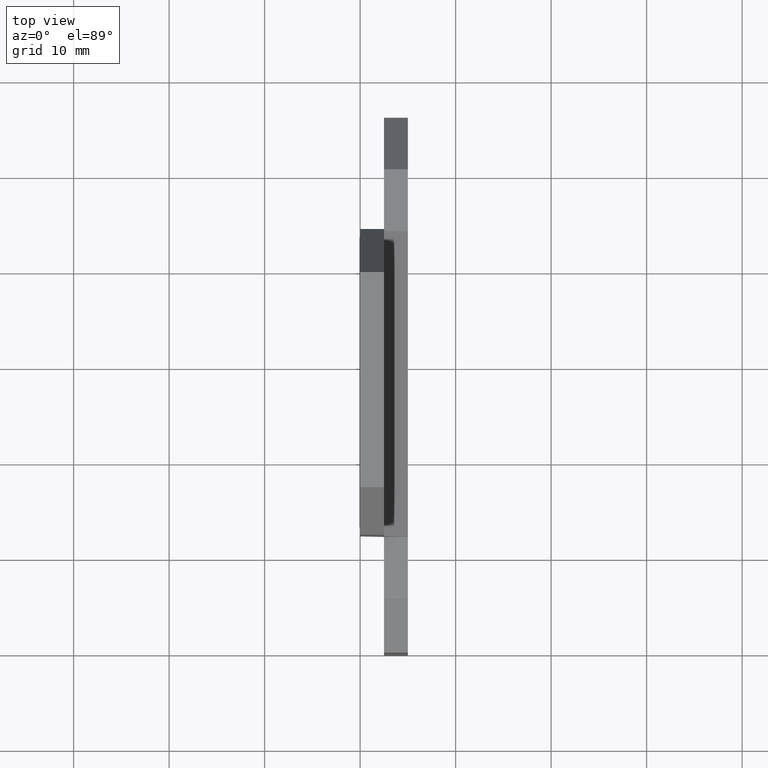
[diagram: clean part render]
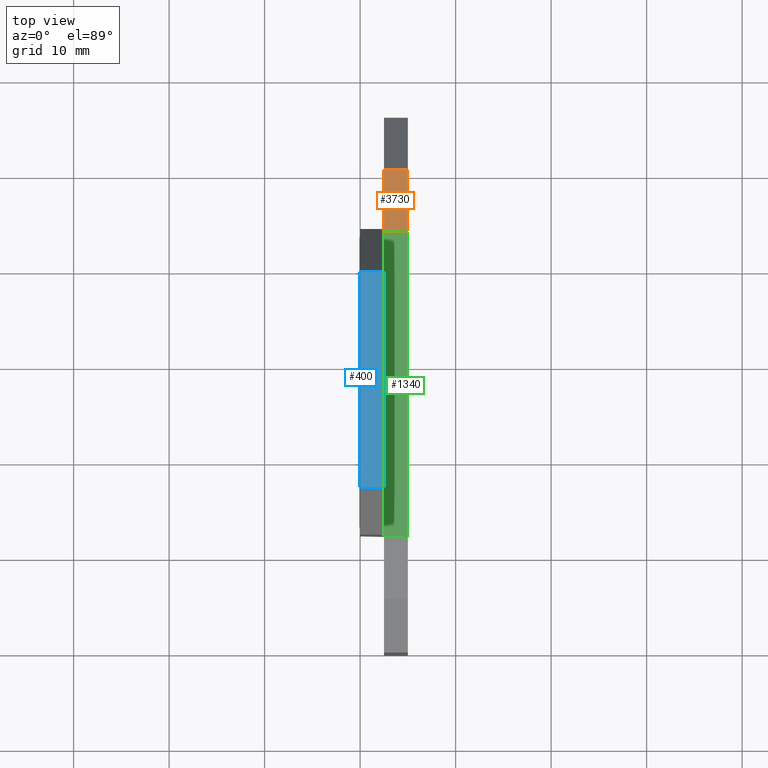
[diagram: same view with three faces highlighted in distinct colors, each labeled with its STEP entity id]
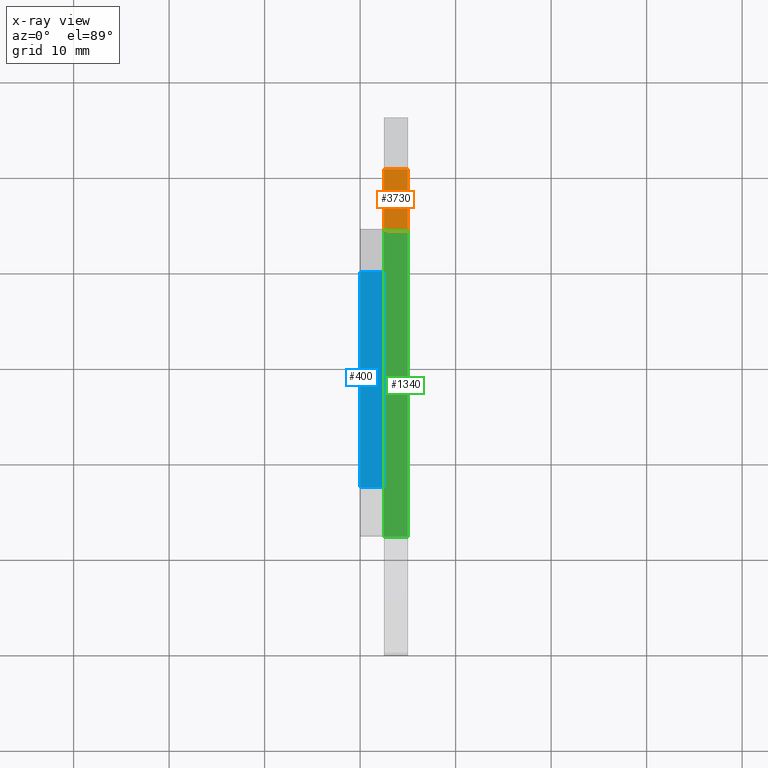
[diagram: x-ray of the same camera — body ghosted, the three highlighted faces saturated]
A machine part, top view with three faces highlighted in distinct colors.
The next image is the same camera in x-ray (body ghosted, the three faces saturated) — at least one of them is partly hidden behind the body in this view.
Their STEP definitions:

[orange] entity #3730 — the highlighted planar face has unit normal (-0, -0, 1).
#750=CARTESIAN_POINT('',(6.66153799999999,31.630769,-2.5));
#760=VERTEX_POINT('',#750);
#1040=CARTESIAN_POINT('',(6.66153799999999,31.630769,-5.));
#1050=VERTEX_POINT('',#1040);
#1640=CARTESIAN_POINT('',(6.66153799999999,31.630769,0.));
#1650=DIRECTION('',(0.,0.,-1.));
#1660=VECTOR('',#1650,1.);
#1670=LINE('',#1640,#1660);
#1680=EDGE_CURVE('',#760,#1050,#1670,.T.);
#1920=CARTESIAN_POINT('',(0.161537999999886,31.630769,0.));
#1930=DIRECTION('',(0.,0.,1.));
#1940=VECTOR('',#1930,1.);
#1950=LINE('',#1920,#1940);
#1960=CARTESIAN_POINT('',(0.161537999999886,31.630769,-5.));
#1970=VERTEX_POINT('',#1960);
#1980=CARTESIAN_POINT('',(0.161537999999886,31.630769,-2.5));
#1990=VERTEX_POINT('',#1980);
#2000=EDGE_CURVE('',#1970,#1990,#1950,.T.);
#3100=CARTESIAN_POINT('',(0.,31.630769,-2.5));
#3110=DIRECTION('',(-1.,0.,0.));
#3120=VECTOR('',#3110,1.);
#3130=LINE('',#3100,#3120);
#3140=EDGE_CURVE('',#760,#1990,#3130,.T.);
#3570=CARTESIAN_POINT('',(0.161537999999883,31.630769,-5.));
#3580=DIRECTION('',(0.,1.,-0.));
#3590=DIRECTION('',(-1.,0.,0.));
#3600=AXIS2_PLACEMENT_3D('',#3570,#3580,#3590);
#3610=PLANE('',#3600);
#3620=ORIENTED_EDGE('',*,*,#1680,.T.);
#3630=ORIENTED_EDGE('',*,*,#3140,.F.);
#3640=ORIENTED_EDGE('',*,*,#2000,.T.);
#3650=CARTESIAN_POINT('',(0.,31.630769,-5.));
#3660=DIRECTION('',(-1.,0.,0.));
#3670=VECTOR('',#3660,1.);
#3680=LINE('',#3650,#3670);
#3690=EDGE_CURVE('',#1050,#1970,#3680,.T.);
#3700=ORIENTED_EDGE('',*,*,#3690,.T.);
#3710=EDGE_LOOP('',(#3700,#3640,#3630,#3620));
#3720=FACE_OUTER_BOUND('',#3710,.T.);
#3730=ADVANCED_FACE('',(#3720),#3610,.T.);

[blue] entity #400 — the highlighted planar face has unit normal (-0, -0, 1).
#10=CARTESIAN_POINT('',(12.09335858367,58.630769,-2.5));
#20=DIRECTION('',(0.,1.,-0.));
#30=DIRECTION('',(-1.,0.,0.));
#40=AXIS2_PLACEMENT_3D('',#10,#20,#30);
#50=PLANE('',#40);
#60=CARTESIAN_POINT('',(0.,58.630769,-2.5));
#70=DIRECTION('',(-1.,0.,0.));
#80=VECTOR('',#70,1.);
#90=LINE('',#60,#80);
#100=CARTESIAN_POINT('',(33.9299249545394,58.630769,-2.5));
#110=VERTEX_POINT('',#100);
#120=CARTESIAN_POINT('',(11.3931510454603,58.630769,-2.5));
#130=VERTEX_POINT('',#120);
#140=EDGE_CURVE('',#110,#130,#90,.T.);
#150=ORIENTED_EDGE('',*,*,#140,.T.);
#160=CARTESIAN_POINT('',(33.9299249545394,58.630769,0.));
#170=DIRECTION('',(0.,0.,-1.));
#180=VECTOR('',#170,1.);
#190=LINE('',#160,#180);
#200=CARTESIAN_POINT('',(33.9299249545394,58.630769,8.88178419700125E-16
));
#210=VERTEX_POINT('',#200);
#220=EDGE_CURVE('',#210,#110,#190,.T.);
#230=ORIENTED_EDGE('',*,*,#220,.T.);
#240=CARTESIAN_POINT('',(0.,58.630769,8.88178419700125E-16));
#250=DIRECTION('',(-1.,0.,0.));
#260=VECTOR('',#250,1.);
#270=LINE('',#240,#260);
#280=CARTESIAN_POINT('',(11.3931510454603,58.630769,8.88178419700125E-16
));
#290=VERTEX_POINT('',#280);
#300=EDGE_CURVE('',#210,#290,#270,.T.);
#310=ORIENTED_EDGE('',*,*,#300,.F.);
#320=CARTESIAN_POINT('',(11.3931510454603,58.630769,0.));
#330=DIRECTION('',(0.,0.,-1.));
#340=VECTOR('',#330,1.);
#350=LINE('',#320,#340);
#360=EDGE_CURVE('',#290,#130,#350,.T.);
#370=ORIENTED_EDGE('',*,*,#360,.F.);
#380=EDGE_LOOP('',(#370,#310,#230,#150));
#390=FACE_OUTER_BOUND('',#380,.T.);
#400=ADVANCED_FACE('',(#390),#50,.T.);

[green] entity #1340 — the highlighted planar face has unit normal (0.766, 0, 0.6428).
#950=CARTESIAN_POINT('',(-5.338462,34.6101529814855,-2.5));
#960=DIRECTION('',(0.,0.642787609686539,-0.766044443118978));
#970=DIRECTION('',(0.,0.766044443118978,0.642787609686539));
#980=AXIS2_PLACEMENT_3D('',#950,#960,#970);
#990=PLANE('',#980);
#1000=CARTESIAN_POINT('',(0.,31.630769,-5.));
#1010=DIRECTION('',(1.,0.,0.));
#1020=VECTOR('',#1010,1.);
#1030=LINE('',#1000,#1020);
#1040=CARTESIAN_POINT('',(6.66153799999999,31.630769,-5.));
#1050=VERTEX_POINT('',#1040);
#1060=CARTESIAN_POINT('',(38.6615379999999,31.630769,-5.));
#1070=VERTEX_POINT('',#1060);
#1080=EDGE_CURVE('',#1050,#1070,#1030,.T.);
#1090=ORIENTED_EDGE('',*,*,#1080,.F.);
#1100=CARTESIAN_POINT('',(38.661538,0.,-31.5413666017537));
#1110=DIRECTION('',(0.,-0.766044443118978,-0.642787609686539));
#1120=VECTOR('',#1110,1.);
#1130=LINE('',#1100,#1120);
#1140=CARTESIAN_POINT('',(38.6615379999999,34.6101529814855,-2.5));
#1150=VERTEX_POINT('',#1140);
#1160=EDGE_CURVE('',#1150,#1070,#1130,.T.);
#1170=ORIENTED_EDGE('',*,*,#1160,.T.);
#1180=CARTESIAN_POINT('',(0.,34.6101529814855,-2.5));
#1190=DIRECTION('',(-1.,0.,0.));
#1200=VECTOR('',#1190,1.);
#1210=LINE('',#1180,#1200);
#1220=CARTESIAN_POINT('',(6.66153799999999,34.6101529814855,-2.5));
#1230=VERTEX_POINT('',#1220);
#1240=EDGE_CURVE('',#1150,#1230,#1210,.T.);
#1250=ORIENTED_EDGE('',*,*,#1240,.F.);
#1260=CARTESIAN_POINT('',(6.66153799999999,0.,-31.5413666017537));
#1270=DIRECTION('',(0.,0.766044443118978,0.642787609686539));
#1280=VECTOR('',#1270,1.);
#1290=LINE('',#1260,#1280);
#1300=EDGE_CURVE('',#1050,#1230,#1290,.T.);
#1310=ORIENTED_EDGE('',*,*,#1300,.T.);
#1320=EDGE_LOOP('',(#1310,#1250,#1170,#1090));
#1330=FACE_OUTER_BOUND('',#1320,.T.);
#1340=ADVANCED_FACE('',(#1330),#990,.T.);